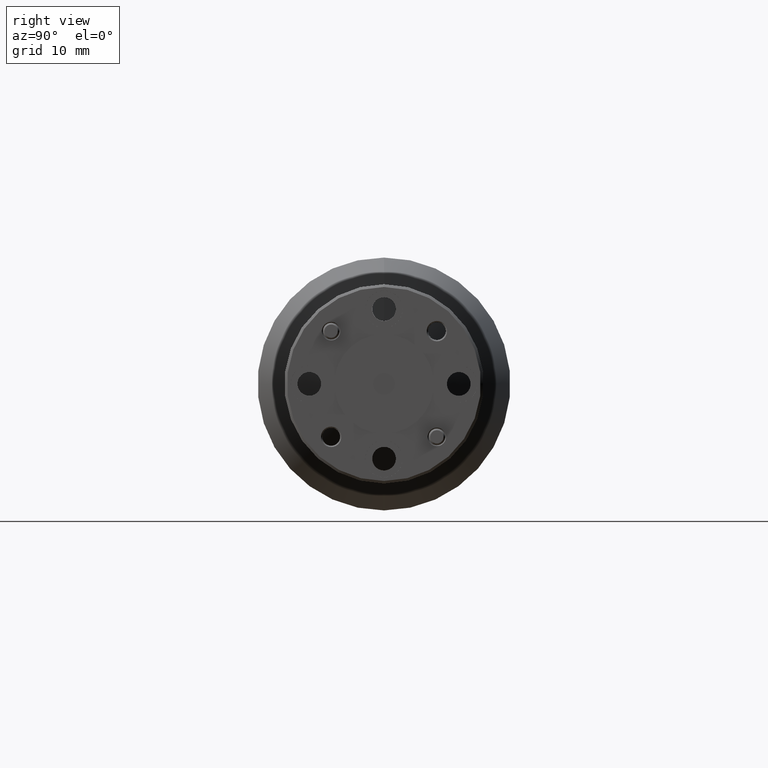
[diagram: clean part render]
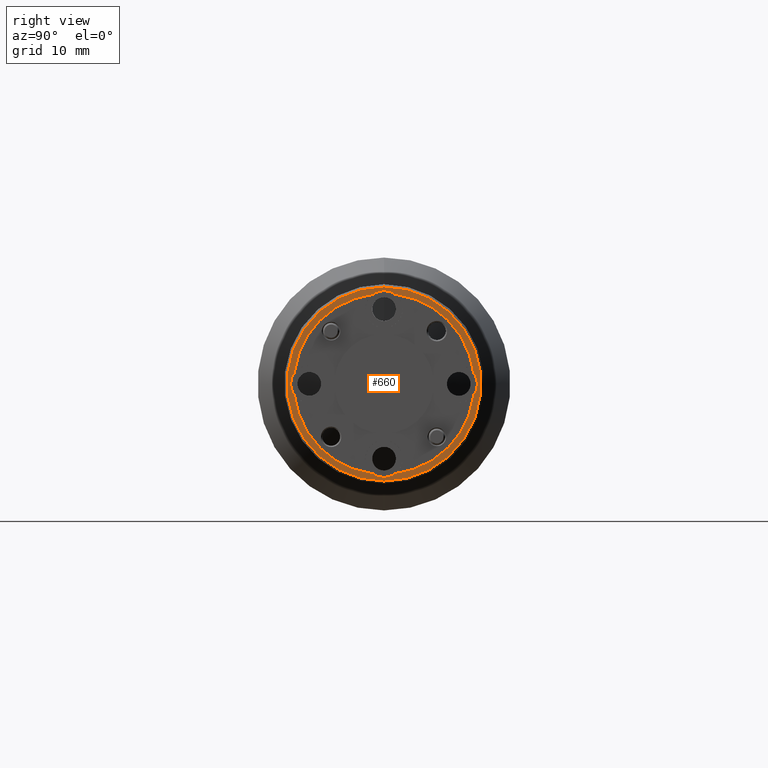
[diagram: same view with one face highlighted and labeled with its STEP entity id]
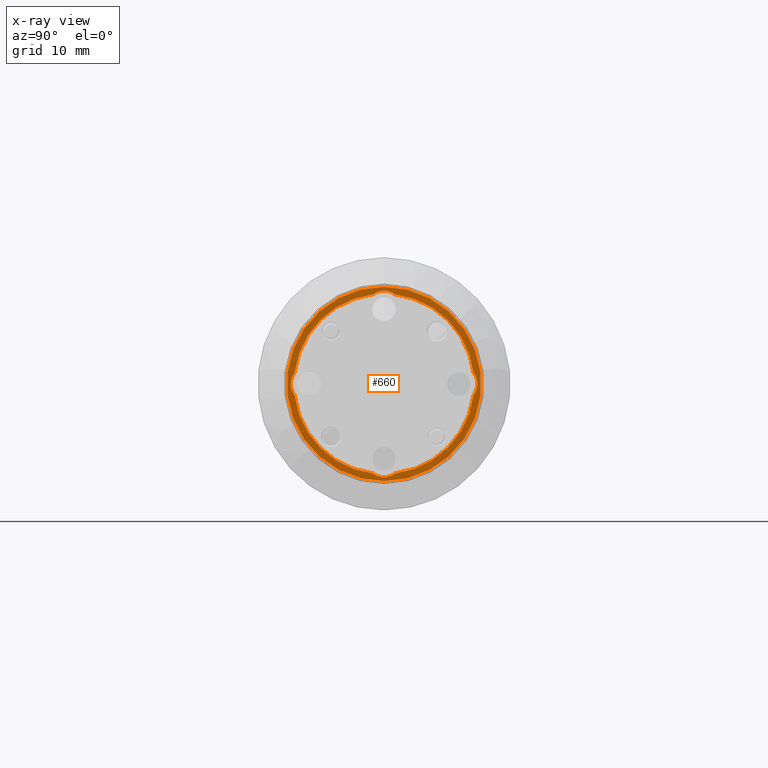
[diagram: x-ray of the same camera — body ghosted, the highlighted face saturated]
A machine part, right view. The second image highlights one B-rep face of the part: STEP entity #660.
The next image is the same camera in x-ray: the body ghosted, the highlighted face saturated — about 0% of this face is hidden behind the body in this view.
In plain terms, the highlighted planar face has unit normal (1, 0, -0).
Its self-contained STEP definition (entity closure, byte-faithful):
#1 = CARTESIAN_POINT ( 'NONE',  ( 1.789620190425750046, 1.132380905805825178, 1.254287461640205992 ) ) ;
#12 = EDGE_CURVE ( 'NONE', #826, #1634, #2223, .T. ) ;
#20 = CIRCLE ( 'NONE', #675, 0.07000000000000007605 ) ;
#46 = CIRCLE ( 'NONE', #1394, 0.07000000000000007605 ) ;
#54 = DIRECTION ( 'NONE',  ( 0.000000000000000000, 0.000000000000000000, -1.000000000000000000 ) ) ;
#55 = CIRCLE ( 'NONE', #1323, 0.06999999999999993727 ) ;
#102 = DIRECTION ( 'NONE',  ( 0.000000000000000000, 0.000000000000000000, -1.000000000000000000 ) ) ;
#171 = CARTESIAN_POINT ( 'NONE',  ( 1.789620190425750046, 1.507380905805825178, 1.254287461640205992 ) ) ;
#182 = AXIS2_PLACEMENT_3D ( 'NONE', #171, #947, #2226 ) ;
#200 = EDGE_CURVE ( 'NONE', #831, #1971, #46, .T. ) ;
#211 = EDGE_CURVE ( 'NONE', #1700, #831, #732, .T. ) ;
#231 = DIRECTION ( 'NONE',  ( 0.000000000000000000, 0.000000000000000000, -1.000000000000000000 ) ) ;
#267 = CIRCLE ( 'NONE', #2306, 0.3650000000000008793 ) ;
#279 = ORIENTED_EDGE ( 'NONE', *, *, #211, .F. ) ;
#284 = CARTESIAN_POINT ( 'NONE',  ( 1.789620190425750046, 1.132380905805825178, 1.254287461640205992 ) ) ;
#304 = AXIS2_PLACEMENT_3D ( 'NONE', #1572, #1752, #2101 ) ;
#337 = DIRECTION ( 'NONE',  ( 1.000000000000000000, -0.000000000000000000, -0.000000000000000000 ) ) ;
#340 = AXIS2_PLACEMENT_3D ( 'NONE', #1, #2020, #380 ) ;
#371 = DIRECTION ( 'NONE',  ( 1.000000000000000000, 0.000000000000000000, 0.000000000000000000 ) ) ;
#380 = DIRECTION ( 'NONE',  ( 0.000000000000000000, 0.000000000000000000, -1.000000000000000000 ) ) ;
#409 = DIRECTION ( 'NONE',  ( 1.000000000000000000, 0.000000000000000000, 0.000000000000000000 ) ) ;
#477 = ORIENTED_EDGE ( 'NONE', *, *, #614, .F. ) ;
#515 = CIRCLE ( 'NONE', #1568, 0.3400000000000000799 ) ;
#525 = DIRECTION ( 'NONE',  ( 0.000000000000000000, 0.000000000000000000, -1.000000000000000000 ) ) ;
#551 = PLANE ( 'NONE',  #182 ) ;
#565 = CARTESIAN_POINT ( 'NONE',  ( 1.789620190425750046, 0.8511309058058250665, 1.254287461640205992 ) ) ;
#567 = ORIENTED_EDGE ( 'NONE', *, *, #200, .F. ) ;
#580 = DIRECTION ( 'NONE',  ( 0.000000000000000000, 0.000000000000000000, -1.000000000000000000 ) ) ;
#586 = ORIENTED_EDGE ( 'NONE', *, *, #735, .F. ) ;
#614 = EDGE_CURVE ( 'NONE', #2248, #826, #1386, .T. ) ;
#660 = ADVANCED_FACE ( 'NONE', ( #759, #2351 ), #551, .T. ) ;
#675 = AXIS2_PLACEMENT_3D ( 'NONE', #565, #371, #751 ) ;
#710 = CARTESIAN_POINT ( 'NONE',  ( 1.789620190425750046, 1.090615257540773264, 1.591712461640206078 ) ) ;
#716 = VERTEX_POINT ( 'NONE', #903 ) ;
#732 = CIRCLE ( 'NONE', #1883, 0.07000000000000007605 ) ;
#735 = EDGE_CURVE ( 'NONE', #716, #2248, #1585, .T. ) ;
#743 = DIRECTION ( 'NONE',  ( 0.000000000000000000, 0.000000000000000000, -1.000000000000000000 ) ) ;
#751 = DIRECTION ( 'NONE',  ( 0.000000000000000000, 0.000000000000000000, -1.000000000000000000 ) ) ;
#759 = FACE_BOUND ( 'NONE', #968, .T. ) ;
#764 = ORIENTED_EDGE ( 'NONE', *, *, #1708, .F. ) ;
#784 = CARTESIAN_POINT ( 'NONE',  ( 1.789620190425750046, 1.132380905805825178, 1.535537461640206214 ) ) ;
#801 = ORIENTED_EDGE ( 'NONE', *, *, #2141, .F. ) ;
#826 = VERTEX_POINT ( 'NONE', #1348 ) ;
#831 = VERTEX_POINT ( 'NONE', #1231 ) ;
#852 = VERTEX_POINT ( 'NONE', #1424 ) ;
#863 = CARTESIAN_POINT ( 'NONE',  ( 1.789620190425750046, 1.132380905805825178, 0.9730374616402059917 ) ) ;
#889 = CARTESIAN_POINT ( 'NONE',  ( 1.789620190425750046, 1.132380905805825178, 0.9730374616402059917 ) ) ;
#903 = CARTESIAN_POINT ( 'NONE',  ( 1.789620190425750046, 1.132380905805825178, 0.9030374616402060406 ) ) ;
#905 = CARTESIAN_POINT ( 'NONE',  ( 1.789620190425750046, 1.469805905805825041, 1.296053109905257683 ) ) ;
#938 = CARTESIAN_POINT ( 'NONE',  ( 1.789620190425750046, 1.132380905805825178, 1.254287461640205992 ) ) ;
#947 = DIRECTION ( 'NONE',  ( 1.000000000000000000, 0.000000000000000000, -0.000000000000000000 ) ) ;
#964 = EDGE_CURVE ( 'NONE', #1532, #1462, #1435, .T. ) ;
#968 = EDGE_LOOP ( 'NONE', ( #279, #1944, #1083, #477, #586, #764, #1144, #801, #1295, #567 ) ) ;
#977 = CARTESIAN_POINT ( 'NONE',  ( 1.789620190425750046, 1.174146554070876869, 0.9168624616402061278 ) ) ;
#1028 = VERTEX_POINT ( 'NONE', #1878 ) ;
#1047 = AXIS2_PLACEMENT_3D ( 'NONE', #1229, #1723, #1753 ) ;
#1080 = AXIS2_PLACEMENT_3D ( 'NONE', #863, #2061, #231 ) ;
#1083 = ORIENTED_EDGE ( 'NONE', *, *, #12, .F. ) ;
#1084 = AXIS2_PLACEMENT_3D ( 'NONE', #1654, #337, #743 ) ;
#1108 = ORIENTED_EDGE ( 'NONE', *, *, #1461, .T. ) ;
#1115 = CARTESIAN_POINT ( 'NONE',  ( 1.789620190425750046, 1.132380905805825178, 1.535537461640206214 ) ) ;
#1131 = DIRECTION ( 'NONE',  ( 1.000000000000000000, -0.000000000000000000, -0.000000000000000000 ) ) ;
#1144 = ORIENTED_EDGE ( 'NONE', *, *, #964, .F. ) ;
#1202 = EDGE_CURVE ( 'NONE', #1634, #1700, #2301, .T. ) ;
#1229 = CARTESIAN_POINT ( 'NONE',  ( 1.789620190425750046, 1.132380905805825178, 1.254287461640205992 ) ) ;
#1231 = CARTESIAN_POINT ( 'NONE',  ( 1.789620190425750046, 1.132380905805825178, 1.605537461640206276 ) ) ;
#1239 = AXIS2_PLACEMENT_3D ( 'NONE', #2023, #1131, #580 ) ;
#1242 = ORIENTED_EDGE ( 'NONE', *, *, #1494, .T. ) ;
#1271 = DIRECTION ( 'NONE',  ( 0.000000000000000000, 0.000000000000000000, -1.000000000000000000 ) ) ;
#1291 = DIRECTION ( 'NONE',  ( 1.000000000000000000, 0.000000000000000000, 0.000000000000000000 ) ) ;
#1295 = ORIENTED_EDGE ( 'NONE', *, *, #2277, .F. ) ;
#1318 = CARTESIAN_POINT ( 'NONE',  ( 1.789620190425750046, 1.090615257540773264, 0.9168624616402060168 ) ) ;
#1323 = AXIS2_PLACEMENT_3D ( 'NONE', #889, #1761, #1271 ) ;
#1348 = CARTESIAN_POINT ( 'NONE',  ( 1.789620190425750046, 1.469805905805825041, 1.212521813375154300 ) ) ;
#1386 = CIRCLE ( 'NONE', #340, 0.3400000000000000799 ) ;
#1394 = AXIS2_PLACEMENT_3D ( 'NONE', #1115, #409, #54 ) ;
#1424 = CARTESIAN_POINT ( 'NONE',  ( 1.789620190425750046, 1.132380905805825178, 0.8892874616402051124 ) ) ;
#1435 = CIRCLE ( 'NONE', #1084, 0.3400000000000000799 ) ;
#1461 = EDGE_CURVE ( 'NONE', #852, #2150, #1690, .T. ) ;
#1462 = VERTEX_POINT ( 'NONE', #1318 ) ;
#1494 = EDGE_CURVE ( 'NONE', #2150, #852, #267, .T. ) ;
#1515 = CARTESIAN_POINT ( 'NONE',  ( 1.789620190425750046, 1.132380905805825178, 1.619287461640206871 ) ) ;
#1532 = VERTEX_POINT ( 'NONE', #2099 ) ;
#1568 = AXIS2_PLACEMENT_3D ( 'NONE', #938, #2169, #525 ) ;
#1572 = CARTESIAN_POINT ( 'NONE',  ( 1.789620190425750046, 1.413630905805825178, 1.254287461640205992 ) ) ;
#1584 = DIRECTION ( 'NONE',  ( 1.000000000000000000, -0.000000000000000000, -0.000000000000000000 ) ) ;
#1585 = CIRCLE ( 'NONE', #1080, 0.06999999999999993727 ) ;
#1634 = VERTEX_POINT ( 'NONE', #905 ) ;
#1646 = EDGE_LOOP ( 'NONE', ( #1242, #1108 ) ) ;
#1654 = CARTESIAN_POINT ( 'NONE',  ( 1.789620190425750046, 1.132380905805825178, 1.254287461640205992 ) ) ;
#1672 = DIRECTION ( 'NONE',  ( 0.000000000000000000, 0.000000000000000000, -1.000000000000000000 ) ) ;
#1690 = CIRCLE ( 'NONE', #1239, 0.3650000000000008793 ) ;
#1700 = VERTEX_POINT ( 'NONE', #2170 ) ;
#1708 = EDGE_CURVE ( 'NONE', #1462, #716, #55, .T. ) ;
#1723 = DIRECTION ( 'NONE',  ( 1.000000000000000000, -0.000000000000000000, -0.000000000000000000 ) ) ;
#1752 = DIRECTION ( 'NONE',  ( 1.000000000000000000, 0.000000000000000000, 0.000000000000000000 ) ) ;
#1753 = DIRECTION ( 'NONE',  ( 0.000000000000000000, 0.000000000000000000, -1.000000000000000000 ) ) ;
#1761 = DIRECTION ( 'NONE',  ( 1.000000000000000000, -0.000000000000000000, -0.000000000000000000 ) ) ;
#1878 = CARTESIAN_POINT ( 'NONE',  ( 1.789620190425750046, 0.7949559058058250915, 1.296053109905257683 ) ) ;
#1883 = AXIS2_PLACEMENT_3D ( 'NONE', #784, #1291, #1672 ) ;
#1944 = ORIENTED_EDGE ( 'NONE', *, *, #1202, .F. ) ;
#1971 = VERTEX_POINT ( 'NONE', #710 ) ;
#2020 = DIRECTION ( 'NONE',  ( 1.000000000000000000, -0.000000000000000000, -0.000000000000000000 ) ) ;
#2023 = CARTESIAN_POINT ( 'NONE',  ( 1.789620190425750046, 1.132380905805825178, 1.254287461640205992 ) ) ;
#2061 = DIRECTION ( 'NONE',  ( 1.000000000000000000, -0.000000000000000000, -0.000000000000000000 ) ) ;
#2099 = CARTESIAN_POINT ( 'NONE',  ( 1.789620190425750046, 0.7949559058058252026, 1.212521813375154522 ) ) ;
#2101 = DIRECTION ( 'NONE',  ( 0.000000000000000000, 0.000000000000000000, -1.000000000000000000 ) ) ;
#2141 = EDGE_CURVE ( 'NONE', #1028, #1532, #20, .T. ) ;
#2150 = VERTEX_POINT ( 'NONE', #1515 ) ;
#2169 = DIRECTION ( 'NONE',  ( 1.000000000000000000, -0.000000000000000000, -0.000000000000000000 ) ) ;
#2170 = CARTESIAN_POINT ( 'NONE',  ( 1.789620190425750046, 1.174146554070876869, 1.591712461640206078 ) ) ;
#2223 = CIRCLE ( 'NONE', #304, 0.07000000000000007605 ) ;
#2226 = DIRECTION ( 'NONE',  ( -0.000000000000000000, 0.000000000000000000, -1.000000000000000000 ) ) ;
#2248 = VERTEX_POINT ( 'NONE', #977 ) ;
#2277 = EDGE_CURVE ( 'NONE', #1971, #1028, #515, .T. ) ;
#2301 = CIRCLE ( 'NONE', #1047, 0.3400000000000000799 ) ;
#2306 = AXIS2_PLACEMENT_3D ( 'NONE', #284, #1584, #102 ) ;
#2351 = FACE_OUTER_BOUND ( 'NONE', #1646, .T. ) ;